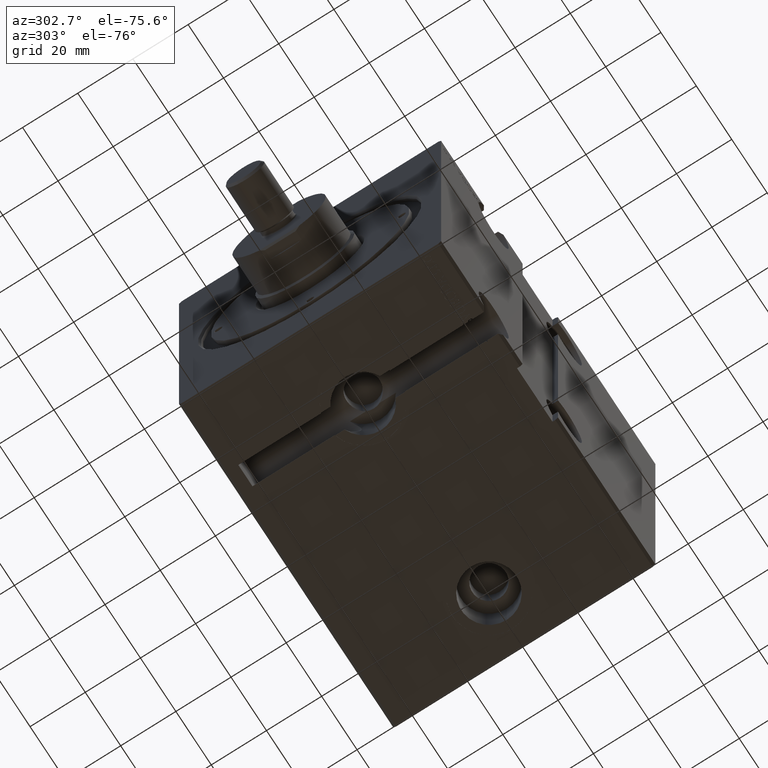
[diagram: clean part render]
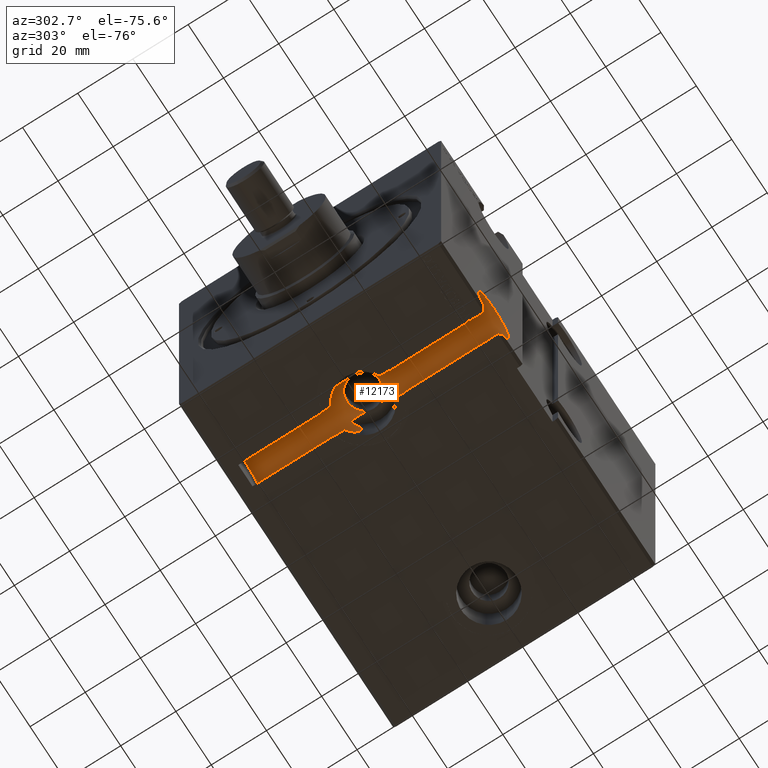
[diagram: same view with one face highlighted and labeled with its STEP entity id]
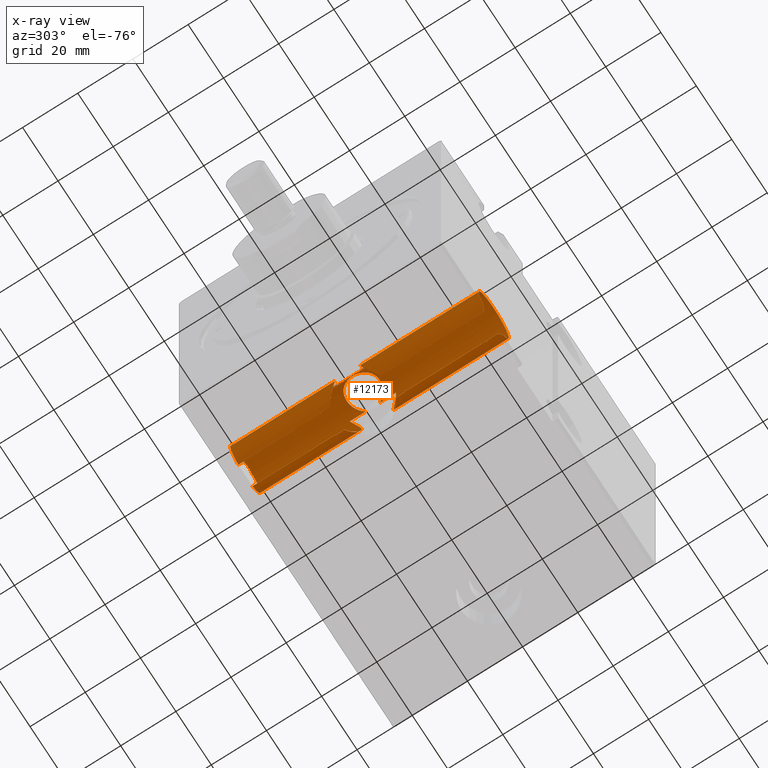
[diagram: x-ray of the same camera — body ghosted, the highlighted face saturated]
A machine part, auxiliary view. The second image highlights one B-rep face of the part: STEP entity #12173.
The next image is the same camera in x-ray: the body ghosted, the highlighted face saturated — about 0% of this face is hidden behind the body in this view.
In plain terms, the highlighted cylindrical surface (edge-blend (fillet) strip) has radius 8.5 mm, axis along (-0, -1, -0).
Its self-contained STEP definition (entity closure, byte-faithful):
#108 = ORIENTED_EDGE ( 'NONE', *, *, #15856, .T. ) ;
#150 = B_SPLINE_CURVE_WITH_KNOTS ( 'NONE', 3,
 ( #28347, #13004, #36809, #19491 ),
 .UNSPECIFIED., .F., .F.,
 ( 4, 4 ),
 ( 6.647921331332125819E-14, 5.401067623535811677E-06 ),
 .UNSPECIFIED. ) ;
#210 = LINE ( 'NONE', #21078, #28147 ) ;
#374 = CARTESIAN_POINT ( 'NONE',  ( 24.25571774332770403, -1.741759066686683566, -48.45139578480374354 ) ) ;
#651 = CARTESIAN_POINT ( 'NONE',  ( 21.20307403096999010, 4.755489555954247827, -54.28642074253728111 ) ) ;
#816 = ORIENTED_EDGE ( 'NONE', *, *, #17418, .F. ) ;
#892 = B_SPLINE_CURVE_WITH_KNOTS ( 'NONE', 3,
 ( #22715, #26041, #16611, #7737 ),
 .UNSPECIFIED., .F., .F.,
 ( 4, 4 ),
 ( 0.000000000000000000, 0.0002146553809396178599 ),
 .UNSPECIFIED. ) ;
#950 = CARTESIAN_POINT ( 'NONE',  ( 31.60794318286851734, 5.790960263388677198, -46.71565587210380244 ) ) ;
#1035 = B_SPLINE_CURVE_WITH_KNOTS ( 'NONE', 3,
 ( #17071, #34581, #2104, #19639, #16016, #21142 ),
 .UNSPECIFIED., .F., .F.,
 ( 4, 2, 4 ),
 ( 9.813077866773594792E-18, 0.0002107407363749036044, 0.0004214814727497973967 ),
 .UNSPECIFIED. ) ;
#1042 = CARTESIAN_POINT ( 'NONE',  ( 21.64687764659769442, 5.501827936005073028, -57.81166235007952992 ) ) ;
#1306 = CARTESIAN_POINT ( 'NONE',  ( 24.19784248308061336, -47.50000000000000711, -61.50000000000001421 ) ) ;
#1531 = CARTESIAN_POINT ( 'NONE',  ( 32.57599727759622255, 5.429240002694839973, -47.00402867175373700 ) ) ;
#1543 = CARTESIAN_POINT ( 'NONE',  ( 38.17313264805599005, -5.761936544386211168, -55.39892836537453036 ) ) ;
#1551 = EDGE_CURVE ( 'NONE', #25912, #12823, #15735, .T. ) ;
#1559 = VERTEX_POINT ( 'NONE', #5076 ) ;
#1696 = ORIENTED_EDGE ( 'NONE', *, *, #4936, .T. ) ;
#1759 = VERTEX_POINT ( 'NONE', #12919 ) ;
#1765 = B_SPLINE_CURVE_WITH_KNOTS ( 'NONE', 3,
 ( #5946, #6332, #9473, #9282, #30325, #33668 ),
 .UNSPECIFIED., .F., .F.,
 ( 4, 2, 4 ),
 ( 1.441404371723892375E-11, 0.0002932933579843761095, 0.0005865867015547084756 ),
 .UNSPECIFIED. ) ;
#1804 = VERTEX_POINT ( 'NONE', #33561 ) ;
#1931 = CARTESIAN_POINT ( 'NONE',  ( 38.13457704317474395, -5.816356424955156257, -54.15242532908114725 ) ) ;
#2073 = CIRCLE ( 'NONE', #20284, 8.500000000000000000 ) ;
#2104 = CARTESIAN_POINT ( 'NONE',  ( 33.90297525096431031, -42.58253699411869064, -62.37424133263155568 ) ) ;
#2138 = VECTOR ( 'NONE', #11752, 1000.000000000000000 ) ;
#2172 = CARTESIAN_POINT ( 'NONE',  ( 25.52982784143263117, -42.42186792964145781, -62.42102786873506659 ) ) ;
#2184 = CARTESIAN_POINT ( 'NONE',  ( 21.54108471117389456, -5.336155085033817969, -57.49083794081117560 ) ) ;
#2211 = CARTESIAN_POINT ( 'NONE',  ( 33.85717279139762326, 12.67614760316800115, -62.39999999999999858 ) ) ;
#2265 = VECTOR ( 'NONE', #27690, 1000.000000000000000 ) ;
#2377 = CARTESIAN_POINT ( 'NONE',  ( 34.02754407051283181, -42.23076923076924061, -62.30109255944974223 ) ) ;
#2442 = EDGE_CURVE ( 'NONE', #27119, #29954, #35110, .T. ) ;
#2577 = CARTESIAN_POINT ( 'NONE',  ( 21.22021821839429023, -4.787238834448681146, -54.10664291624458144 ) ) ;
#2648 = CARTESIAN_POINT ( 'NONE',  ( 25.67506805813219728, -38.98382125218172689, -62.49999999999997158 ) ) ;
#2660 = CARTESIAN_POINT ( 'NONE',  ( 25.67506805813225768, 42.50000000000001421, -62.50000000000000000 ) ) ;
#2738 = CARTESIAN_POINT ( 'NONE',  ( 27.49086874017922355, -5.461321131391861705, -46.77867324891882106 ) ) ;
#2761 = VERTEX_POINT ( 'NONE', #9715 ) ;
#2764 = VERTEX_POINT ( 'NONE', #15839 ) ;
#2768 = VERTEX_POINT ( 'NONE', #15248 ) ;
#2859 = DIRECTION ( 'NONE',  ( -0.000000000000000000, -1.000000000000000000, -5.507058653894626469E-17 ) ) ;
#2884 = CARTESIAN_POINT ( 'NONE',  ( 21.18012596734794428, 4.712792109730139067, -54.65382514941804715 ) ) ;
#2943 = CARTESIAN_POINT ( 'NONE',  ( 24.96515966029890166, -3.280986063497410843, -47.92122257786350303 ) ) ;
#2969 = CARTESIAN_POINT ( 'NONE',  ( 21.20210810239320764, -4.754671696196278496, -55.76797696247106018 ) ) ;
#2992 = CARTESIAN_POINT ( 'NONE',  ( 34.02754407051283181, -42.23076923076924061, -62.30109255944974223 ) ) ;
#3011 = CARTESIAN_POINT ( 'NONE',  ( 34.00457577598747605, -42.22944971349411247, -62.31478488702301632 ) ) ;
#3132 = CARTESIAN_POINT ( 'NONE',  ( 29.00086441872178256, -5.918900836557949852, -46.52496585473003421 ) ) ;
#3163 = ORIENTED_EDGE ( 'NONE', *, *, #7353, .F. ) ;
#3243 = EDGE_CURVE ( 'NONE', #22336, #35865, #3603, .T. ) ;
#3344 = CARTESIAN_POINT ( 'NONE',  ( 25.67506805813225768, 42.50000000000001421, -62.50000000000000000 ) ) ;
#3368 = CARTESIAN_POINT ( 'NONE',  ( 29.67506805813228965, 42.50000000000001421, -55.00000000000002132 ) ) ;
#3372 =( BOUNDED_CURVE ( )  B_SPLINE_CURVE ( 3, ( #30566, #3616, #24289, #36665 ),
 .UNSPECIFIED., .F., .F. ) 
 B_SPLINE_CURVE_WITH_KNOTS ( ( 4, 4 ),
 ( 2.441381098055499521, 2.651635327336060666 ),
 .UNSPECIFIED. ) 
 CURVE ( )  GEOMETRIC_REPRESENTATION_ITEM ( )  RATIONAL_B_SPLINE_CURVE ( ( 1.000000000000000000, 0.9963194881255985624, 0.9963194881255985624, 1.000000000000000000 ) ) 
 REPRESENTATION_ITEM ( '' )  );
#3454 = LINE ( 'NONE', #27266, #25012 ) ;
#3462 = CARTESIAN_POINT ( 'NONE',  ( 25.32075984721416617, 42.49999999997452704, -62.30000000029666296 ) ) ;
#3567 = CYLINDRICAL_SURFACE ( 'NONE', #16404, 8.499999999999992895 ) ;
#3603 =( BOUNDED_CURVE ( )  B_SPLINE_CURVE ( 3, ( #11991, #11406, #23996, #35989 ),
 .UNSPECIFIED., .F., .F. ) 
 B_SPLINE_CURVE_WITH_KNOTS ( ( 4, 4 ),
 ( 2.087874578484643084, 2.108623997399401429 ),
 .UNSPECIFIED. ) 
 CURVE ( )  GEOMETRIC_REPRESENTATION_ITEM ( )  RATIONAL_B_SPLINE_CURVE ( ( 1.000000000000000000, 0.9999641221230350929, 0.9999641221230350929, 1.000000000000000000 ) ) 
 REPRESENTATION_ITEM ( '' )  );
#3604 = CARTESIAN_POINT ( 'NONE',  ( 22.00714750696014121, 6.024397378806160219, -58.72587442619241926 ) ) ;
#3616 = CARTESIAN_POINT ( 'NONE',  ( 34.69590168617018833, -47.11542128547208819, -61.88457871452794024 ) ) ;
#3728 = CARTESIAN_POINT ( 'NONE',  ( 25.50290024390268684, -39.66234960772271734, -62.40568609189743654 ) ) ;
#3804 = CARTESIAN_POINT ( 'NONE',  ( 21.30350708170436747, 4.937176747138196653, -56.48254333354478973 ) ) ;
#3869 = CARTESIAN_POINT ( 'NONE',  ( 37.36671612333887538, 6.765946627072738195, -51.36772692103487259 ) ) ;
#3910 = CARTESIAN_POINT ( 'NONE',  ( 24.15631014226326911, 1.405119751345649037, -48.53470337968934700 ) ) ;
#3997 = CARTESIAN_POINT ( 'NONE',  ( 21.62916430802714629, 5.474748244264664443, -52.23943944690124397 ) ) ;
#4104 = CARTESIAN_POINT ( 'NONE',  ( 25.15448119956154471, 3.554110614755003894, -47.79760885819313643 ) ) ;
#4166 = ORIENTED_EDGE ( 'NONE', *, *, #36378, .F. ) ;
#4276 = VERTEX_POINT ( 'NONE', #8406 ) ;
#4301 = CARTESIAN_POINT ( 'NONE',  ( 35.19669581742154207, 3.016719137988730814, -48.53359339106787473 ) ) ;
#4334 = ORIENTED_EDGE ( 'NONE', *, *, #21335, .F. ) ;
#4487 = DIRECTION ( 'NONE',  ( 0.000000000000000000, 1.000000000000000000, 5.507058653894626469E-17 ) ) ;
#4550 = EDGE_CURVE ( 'NONE', #5489, #25912, #29623, .T. ) ;
#4677 = CARTESIAN_POINT ( 'NONE',  ( 24.24936437997052252, 1.745769598737268113, -48.45518422191489805 ) ) ;
#4688 = CARTESIAN_POINT ( 'NONE',  ( 38.14911678174785692, -5.796392554405197295, -55.75335338804394070 ) ) ;
#4763 = CARTESIAN_POINT ( 'NONE',  ( 33.67506805813231807, 42.50000000000001421, -62.50000000000000000 ) ) ;
#4858 = ORIENTED_EDGE ( 'NONE', *, *, #14614, .F. ) ;
#4936 = EDGE_CURVE ( 'NONE', #4276, #29954, #17953, .T. ) ;
#4947 = VERTEX_POINT ( 'NONE', #2992 ) ;
#5076 = CARTESIAN_POINT ( 'NONE',  ( 23.86043135408966975, -7.893395773819703365, -48.79999999999999716 ) ) ;
#5105 = ORIENTED_EDGE ( 'NONE', *, *, #6844, .F. ) ;
#5144 = CARTESIAN_POINT ( 'NONE',  ( 21.30371461735819594, -4.937542135847456493, -56.48369991847744842 ) ) ;
#5208 = EDGE_CURVE ( 'NONE', #1804, #35172, #15350, .T. ) ;
#5221 = CARTESIAN_POINT ( 'NONE',  ( 34.15221080547841126, 9.102824129345419735, -62.23325947632697108 ) ) ;
#5271 = CARTESIAN_POINT ( 'NONE',  ( 38.07023891535080651, -5.905643638335170031, -53.62239096936095706 ) ) ;
#5338 = CARTESIAN_POINT ( 'NONE',  ( 21.41119333488444454, -5.122435925224801068, -56.99683856194252485 ) ) ;
#5429 = CARTESIAN_POINT ( 'NONE',  ( 25.49296332486695604, 42.50000000000001421, -62.39999999999999858 ) ) ;
#5489 = VERTEX_POINT ( 'NONE', #14472 ) ;
#5506 = CARTESIAN_POINT ( 'NONE',  ( 33.45643751018817369, -4.915179867460278906, -47.38188405326738462 ) ) ;
#5533 = CARTESIAN_POINT ( 'NONE',  ( 21.37224228594109832, -5.056332527347815464, -56.82866292002869102 ) ) ;
#5586 = VECTOR ( 'NONE', #13001, 1000.000000000000000 ) ;
#5611 = CARTESIAN_POINT ( 'NONE',  ( 34.43182182148768078, 8.969373408137535364, -62.05208498345366763 ) ) ;
#5832 = CARTESIAN_POINT ( 'NONE',  ( 22.29564173073976363, 6.379638574118798644, -50.76972663994769874 ) ) ;
#5887 = CARTESIAN_POINT ( 'NONE',  ( 29.53303047296405026, -5.984449882187469427, -46.49934089184005614 ) ) ;
#5946 = CARTESIAN_POINT ( 'NONE',  ( 25.32075984721416617, -39.39656593595944400, -62.30000000029667007 ) ) ;
#6033 = LINE ( 'NONE', #3462, #11639 ) ;
#6085 = CARTESIAN_POINT ( 'NONE',  ( 25.81078057912967694, -4.308708959246603243, -47.42392288408444756 ) ) ;
#6265 = ORIENTED_EDGE ( 'NONE', *, *, #2442, .F. ) ;
#6278 = EDGE_CURVE ( 'NONE', #28104, #2761, #15301, .T. ) ;
#6280 = CARTESIAN_POINT ( 'NONE',  ( 33.96789151942590479, -4.512404046779342259, -47.65792180367366626 ) ) ;
#6332 = CARTESIAN_POINT ( 'NONE',  ( 25.36676907904872635, -39.31446441653523749, -62.32744361344435902 ) ) ;
#6483 = CARTESIAN_POINT ( 'NONE',  ( 25.59948681279090010, -39.50065715595492577, -62.45929337732636810 ) ) ;
#6554 = CARTESIAN_POINT ( 'NONE',  ( 23.86043135408966975, 7.893395773819710470, -48.79999999999999716 ) ) ;
#6844 = EDGE_CURVE ( 'NONE', #31746, #35911, #892, .T. ) ;
#6930 = ORIENTED_EDGE ( 'NONE', *, *, #6278, .T. ) ;
#7012 = CARTESIAN_POINT ( 'NONE',  ( 25.67506805813225768, -46.50000000000000711, -62.50000000000000000 ) ) ;
#7048 = CARTESIAN_POINT ( 'NONE',  ( 28.46159332958545818, 5.810146321781950007, -46.57988628743392212 ) ) ;
#7185 = ORIENTED_EDGE ( 'NONE', *, *, #21471, .T. ) ;
#7249 = CARTESIAN_POINT ( 'NONE',  ( 33.16483357971504375, 5.108447650094210424, -47.24290747619651398 ) ) ;
#7331 = VERTEX_POINT ( 'NONE', #23242 ) ;
#7353 = EDGE_CURVE ( 'NONE', #12823, #21083, #16593, .T. ) ;
#7404 =( BOUNDED_CURVE ( )  B_SPLINE_CURVE ( 3, ( #7012, #21796, #31012, #1306 ),
 .UNSPECIFIED., .F., .F. ) 
 B_SPLINE_CURVE_WITH_KNOTS ( ( 4, 4 ),
 ( 3.631549979843525566, 3.841804209124086711 ),
 .UNSPECIFIED. ) 
 CURVE ( )  GEOMETRIC_REPRESENTATION_ITEM ( )  RATIONAL_B_SPLINE_CURVE ( ( 1.000000000000000000, 0.9963194881255985624, 0.9963194881255985624, 1.000000000000000000 ) ) 
 REPRESENTATION_ITEM ( '' )  );
#7441 = CARTESIAN_POINT ( 'NONE',  ( 34.63793744199068669, 3.820303445283969257, -48.09421690926448179 ) ) ;
#7453 = CARTESIAN_POINT ( 'NONE',  ( 33.85717279139762326, -9.226170281178522004, -62.39999999999999858 ) ) ;
#7517 = LINE ( 'NONE', #4763, #38661 ) ;
#7604 = VECTOR ( 'NONE', #4487, 1000.000000000000000 ) ;
#7629 = CARTESIAN_POINT ( 'NONE',  ( 24.06335949098330929, 0.8871683233531000301, -48.61561167471557354 ) ) ;
#7737 = CARTESIAN_POINT ( 'NONE',  ( 33.85717279139762326, -12.67614760316799405, -62.39999999999999858 ) ) ;
#7832 = CARTESIAN_POINT ( 'NONE',  ( 34.44801593622209879, -8.979157270064916929, -62.06608541721787731 ) ) ;
#8027 = CARTESIAN_POINT ( 'NONE',  ( 37.38701893589603742, -6.750040460969278122, -51.36519459098093421 ) ) ;
#8041 = EDGE_CURVE ( 'NONE', #27119, #35911, #38773, .T. ) ;
#8044 = EDGE_CURVE ( 'NONE', #4947, #26539, #30654, .T. ) ;
#8047 = B_SPLINE_CURVE_WITH_KNOTS ( 'NONE', 3,
 ( #25157, #25344, #18875, #37163, #7629, #3910, #4677, #30848, #12764, #36968, #4104, #34003, #24762, #37352, #16121, #22214, #9810, #22410, #7048, #25542, #37546, #10200, #19065, #34586, #950, #28114, #1531, #7249, #16693, #36770, #33811, #7441, #19258, #4301, #31045, #16311 ),
 .UNSPECIFIED., .F., .F.,
 ( 4, 2, 2, 2, 2, 2, 2, 2, 2, 2, 2, 2, 2, 2, 2, 2, 2, 4 ),
 ( 0.01696928683247717062, 0.01749884251802953997, 0.01802839820358190931, 0.01908750957468665146, 0.02014662094579139015, 0.02120573231689613231, 0.02226484368800087446, 0.02332395505910561315, 0.02438306643021035530, 0.02544217780131509399, 0.02650128917241983614, 0.02756040054352457830, 0.02861951191462931698, 0.02967862328573405567, 0.03073773465683880129, 0.03179684602794353998, 0.03285595739904827867, 0.03391506877015301735 ),
 .UNSPECIFIED. ) ;
#8136 = CARTESIAN_POINT ( 'NONE',  ( 25.32075984721416617, -42.12382751200284758, -62.30000000029667007 ) ) ;
#8186 = VERTEX_POINT ( 'NONE', #33639 ) ;
#8251 = CARTESIAN_POINT ( 'NONE',  ( 25.55316634081186677, -12.48167733284254055, -62.43402369161351118 ) ) ;
#8279 = VECTOR ( 'NONE', #27102, 1000.000000000000000 ) ;
#8373 = LINE ( 'NONE', #5429, #11516 ) ;
#8406 = CARTESIAN_POINT ( 'NONE',  ( 35.48970476217490955, -2.421392496922806892, -48.79999999999999716 ) ) ;
#8450 = CARTESIAN_POINT ( 'NONE',  ( 32.28217635482313597, -5.559639345790319709, -46.90268309509918510 ) ) ;
#8455 = B_SPLINE_CURVE_WITH_KNOTS ( 'NONE', 3,
 ( #18835, #19414, #31387, #28456, #19605, #3869, #12922, #24921, #10930, #14079, #17609, #29602, #19796, #32160, #35318, #19991, #17421, #11321, #26467, #34731, #38270, #34932, #38459, #11124, #28849, #14277, #35121, #5611, #5221, #23137 ),
 .UNSPECIFIED., .F., .F.,
 ( 4, 2, 2, 2, 2, 2, 2, 2, 2, 2, 2, 2, 2, 2, 4 ),
 ( 0.000000000000000000, 0.002134187341948999561, 0.003201281012923508015, 0.004268374683898016470, 0.005335468354872524924, 0.006402562025847032511, 0.007469655696821541832, 0.008536749367796050286, 0.009603843038770557006, 0.01067093670974506373, 0.01173803038071957218, 0.01280512405169407890, 0.01493931139364310448, 0.01600640506461762508, 0.01707349873559214568 ),
 .UNSPECIFIED. ) ;
#8674 = CARTESIAN_POINT ( 'NONE',  ( 34.02937626949007210, -42.23066561297881094, -62.30000000003441585 ) ) ;
#8784 = CARTESIAN_POINT ( 'NONE',  ( 22.00015906729423421, 6.004953765759436735, -51.33299609973818178 ) ) ;
#8870 = CARTESIAN_POINT ( 'NONE',  ( 23.02644424591226269, -7.172760380562611005, -60.30531609129909754 ) ) ;
#8884 = CARTESIAN_POINT ( 'NONE',  ( 35.48970476217490955, -8.358417411457388368, -48.79999999999999716 ) ) ;
#8911 = CARTESIAN_POINT ( 'NONE',  ( 33.69171961294718187, -41.91703111884937272, -62.49112297959790396 ) ) ;
#8935 = B_SPLINE_CURVE_WITH_KNOTS ( 'NONE', 3,
 ( #27967, #36616, #9657, #12812, #24815, #25017 ),
 .UNSPECIFIED., .F., .F.,
 ( 4, 2, 4 ),
 ( 0.000000000000000000, 0.0003287994048208278002, 0.0006575988096416556005 ),
 .UNSPECIFIED. ) ;
#9032 = CARTESIAN_POINT ( 'NONE',  ( 34.64603550706510049, -3.810478643230566398, -48.10004837378015452 ) ) ;
#9049 = CARTESIAN_POINT ( 'NONE',  ( 25.49296332486695604, 12.45990049755637941, -62.39999999999999858 ) ) ;
#9225 = CARTESIAN_POINT ( 'NONE',  ( 26.32187008164235564, -4.752461736339538945, -47.18426423699346373 ) ) ;
#9237 = EDGE_CURVE ( 'NONE', #37953, #25282, #27389, .T. ) ;
#9282 = CARTESIAN_POINT ( 'NONE',  ( 25.53283353453387505, -39.09172071597189557, -62.42268846724497422 ) ) ;
#9473 = CARTESIAN_POINT ( 'NONE',  ( 25.41735185887513992, -39.23612012584291620, -62.35705536861356535 ) ) ;
#9505 = CARTESIAN_POINT ( 'NONE',  ( 22.83775622330444932, 6.983610936111390721, -60.05967737163730646 ) ) ;
#9628 = VECTOR ( 'NONE', #2859, 1000.000000000000000 ) ;
#9633 = B_SPLINE_CURVE_WITH_KNOTS ( 'NONE', 3,
 ( #18105, #15938, #6483, #27735, #3728, #18493 ),
 .UNSPECIFIED., .F., .F.,
 ( 4, 2, 4 ),
 ( 0.000000000000000000, 0.0001954558526534812182, 0.0003909117053069624363 ),
 .UNSPECIFIED. ) ;
#9657 = CARTESIAN_POINT ( 'NONE',  ( 25.41709562979395898, -40.97167930865911956, -62.35694033096257272 ) ) ;
#9715 = CARTESIAN_POINT ( 'NONE',  ( 35.48970476217490955, 2.421392496922812665, -48.79999999999999716 ) ) ;
#9750 = DIRECTION ( 'NONE',  ( 0.000000000000000000, 1.000000000000000000, 5.507058653894626469E-17 ) ) ;
#9810 = CARTESIAN_POINT ( 'NONE',  ( 27.47426536889678417, 5.453478213967677846, -46.78322494119161945 ) ) ;
#9896 = CARTESIAN_POINT ( 'NONE',  ( 23.38815665254393750, 7.526055400557565278, -49.24292029258044323 ) ) ;
#10053 = EDGE_CURVE ( 'NONE', #38191, #14538, #17811, .T. ) ;
#10128 = EDGE_CURVE ( 'NONE', #19327, #21083, #8373, .T. ) ;
#10200 = CARTESIAN_POINT ( 'NONE',  ( 30.21348927352179814, 6.006705188126741923, -46.50964217032431947 ) ) ;
#10218 = EDGE_CURVE ( 'NONE', #1804, #16704, #21260, .T. ) ;
#10462 = ORIENTED_EDGE ( 'NONE', *, *, #3243, .T. ) ;
#10757 = EDGE_CURVE ( 'NONE', #2764, #16110, #2073, .T. ) ;
#10930 = CARTESIAN_POINT ( 'NONE',  ( 37.83699209280214149, 6.212901040467579072, -52.60202956349495906 ) ) ;
#10987 = CARTESIAN_POINT ( 'NONE',  ( 35.94827870859869989, -8.042831244900627397, -49.25548943155977355 ) ) ;
#11018 = CARTESIAN_POINT ( 'NONE',  ( 25.67506805813225768, -12.52427497694824510, -62.50000000000000000 ) ) ;
#11124 = CARTESIAN_POINT ( 'NONE',  ( 36.34071448858872344, 7.747708928678170182, -60.31240554644534058 ) ) ;
#11294 = CARTESIAN_POINT ( 'NONE',  ( 33.75200748827484176, -42.06100270539115371, -62.45854172041459407 ) ) ;
#11321 = CARTESIAN_POINT ( 'NONE',  ( 37.82032357975332815, 6.233932570631443681, -57.45382347008251855 ) ) ;
#11406 = CARTESIAN_POINT ( 'NONE',  ( 25.42205189630561080, -39.66565110935619032, -62.35970854842310018 ) ) ;
#11439 = CARTESIAN_POINT ( 'NONE',  ( 23.66368814216559713, -7.742097382183898979, -61.01805742594834925 ) ) ;
#11516 = VECTOR ( 'NONE', #38863, 1000.000000000000000 ) ;
#11603 = CARTESIAN_POINT ( 'NONE',  ( 30.24051069967039140, -6.005605789273920969, -46.51145159293872666 ) ) ;
#11630 = CARTESIAN_POINT ( 'NONE',  ( 21.64495807256795601, -5.498925931965023217, -57.80627685059442200 ) ) ;
#11639 = VECTOR ( 'NONE', #27477, 1000.000000000000000 ) ;
#11671 = ORIENTED_EDGE ( 'NONE', *, *, #37148, .T. ) ;
#11745 = CARTESIAN_POINT ( 'NONE',  ( 21.37204089779406146, 5.055989026996583036, -56.82776034878062887 ) ) ;
#11752 = DIRECTION ( 'NONE',  ( -0.000000000000000000, -1.000000000000000000, -5.507058653894626469E-17 ) ) ;
#11827 = DIRECTION ( 'NONE',  ( -0.000000000000000000, -1.000000000000000000, -5.507058653894626469E-17 ) ) ;
#11830 = CARTESIAN_POINT ( 'NONE',  ( 23.86043135408966975, -7.893395773819703365, -48.79999999999999716 ) ) ;
#11862 = EDGE_CURVE ( 'NONE', #34231, #21807, #1035, .T. ) ;
#11873 = CARTESIAN_POINT ( 'NONE',  ( 34.02754407051283181, -42.23076923076924061, -62.30109255944974223 ) ) ;
#11991 = CARTESIAN_POINT ( 'NONE',  ( 25.47315705128205465, -39.71794871794872250, -62.38877147369649379 ) ) ;
#12020 = CARTESIAN_POINT ( 'NONE',  ( 21.88542638807305352, -5.847957516176353288, -58.41750476144787996 ) ) ;
#12034 = DIRECTION ( 'NONE',  ( 0.000000000000000000, 0.000000000000000000, -1.000000000000000000 ) ) ;
#12036 = CARTESIAN_POINT ( 'NONE',  ( 25.67506805813219017, -39.40252063465266019, -62.49999999999997158 ) ) ;
#12129 = CARTESIAN_POINT ( 'NONE',  ( 25.67506805813225768, 12.52427497694825220, -62.50000000000000000 ) ) ;
#12173 = ADVANCED_FACE ( 'NONE', ( #18137 ), #3567, .F. ) ;
#12617 = EDGE_CURVE ( 'NONE', #36207, #2761, #8047, .T. ) ;
#12619 = EDGE_CURVE ( 'NONE', #2768, #21807, #28307, .T. ) ;
#12646 = B_SPLINE_CURVE_WITH_KNOTS ( 'NONE', 3,
 ( #20926, #14248, #8911, #35683, #11294, #21126, #26439, #23693, #14626, #23492, #3011, #11873 ),
 .UNSPECIFIED., .F., .F.,
 ( 4, 2, 2, 2, 2, 4 ),
 ( 0.000000000000000000, 0.0001577364811652047212, 0.0003154729623304094424, 0.0004732094434956140823, 0.0005520776840782084605, 0.0006309459246608027302 ),
 .UNSPECIFIED. ) ;
#12657 = CARTESIAN_POINT ( 'NONE',  ( 21.86543427763046665, 5.820017098646379949, -51.62851932561885349 ) ) ;
#12742 = CARTESIAN_POINT ( 'NONE',  ( 33.85717279139762326, 42.50000000000001421, -62.39999999999999858 ) ) ;
#12764 = CARTESIAN_POINT ( 'NONE',  ( 24.62851872706638900, 2.694369640031193835, -48.15720405811408966 ) ) ;
#12812 = CARTESIAN_POINT ( 'NONE',  ( 25.53884097823010535, -40.80243494271609705, -62.42607068221928301 ) ) ;
#12823 = VERTEX_POINT ( 'NONE', #12129 ) ;
#12831 = CARTESIAN_POINT ( 'NONE',  ( 25.47315705128205465, -39.71794871794872250, -62.38877147369649379 ) ) ;
#12853 = CARTESIAN_POINT ( 'NONE',  ( 24.37336459077721784, 8.288094413558141582, -61.67471184545963325 ) ) ;
#12919 = CARTESIAN_POINT ( 'NONE',  ( 25.49296332486695604, -12.45990049755637230, -62.39999999999999858 ) ) ;
#12922 = CARTESIAN_POINT ( 'NONE',  ( 37.50127259555571158, 6.615417334617429646, -51.66693606089705781 ) ) ;
#12942 = VECTOR ( 'NONE', #13164, 1000.000000000000000 ) ;
#13001 = DIRECTION ( 'NONE',  ( 0.000000000000000000, 1.000000000000000000, 5.507058653894626469E-17 ) ) ;
#13004 = CARTESIAN_POINT ( 'NONE',  ( 34.02783100891322476, -42.58961979455489910, -62.30092171795477185 ) ) ;
#13164 = DIRECTION ( 'NONE',  ( -0.000000000000000000, -1.000000000000000000, -5.507058653894626469E-17 ) ) ;
#13195 = CARTESIAN_POINT ( 'NONE',  ( 25.49296332486695604, 42.50000000000001421, -62.39999999999999858 ) ) ;
#13240 = ORIENTED_EDGE ( 'NONE', *, *, #9237, .F. ) ;
#13332 = ORIENTED_EDGE ( 'NONE', *, *, #35873, .T. ) ;
#13481 = VECTOR ( 'NONE', #21808, 1000.000000000000000 ) ;
#13559 = EDGE_CURVE ( 'NONE', #25282, #5489, #27487, .T. ) ;
#13729 = VERTEX_POINT ( 'NONE', #22566 ) ;
#13755 = EDGE_CURVE ( 'NONE', #28104, #35952, #8455, .T. ) ;
#13946 = CARTESIAN_POINT ( 'NONE',  ( 37.35362544861208534, -6.786822772803319026, -58.70517717373427047 ) ) ;
#14079 = CARTESIAN_POINT ( 'NONE',  ( 38.00344251422209396, 5.996956921875377766, -53.26637804547108601 ) ) ;
#14128 = LINE ( 'NONE', #29838, #2138 ) ;
#14137 = CARTESIAN_POINT ( 'NONE',  ( 37.84089540447154576, -6.207959505391165145, -52.61530535919513341 ) ) ;
#14202 = CARTESIAN_POINT ( 'NONE',  ( 21.63006675750970587, -5.476193605701791256, -52.23653544399322612 ) ) ;
#14248 = CARTESIAN_POINT ( 'NONE',  ( 33.68187906749869143, -41.86550122805100926, -62.49636746167128365 ) ) ;
#14277 = CARTESIAN_POINT ( 'NONE',  ( 35.21676373771394708, 8.536138754705298481, -61.45325509343351200 ) ) ;
#14312 = EDGE_CURVE ( 'NONE', #26539, #13729, #14128, .T. ) ;
#14328 = CARTESIAN_POINT ( 'NONE',  ( 38.05629792997989114, -5.924722325200650452, -56.46014688738434018 ) ) ;
#14396 = CARTESIAN_POINT ( 'NONE',  ( 21.17642046921672261, -4.705789191265242088, -55.40279037453896649 ) ) ;
#14472 = CARTESIAN_POINT ( 'NONE',  ( 33.67506805813231807, 42.50000000000001421, -62.50000000000000000 ) ) ;
#14518 = CARTESIAN_POINT ( 'NONE',  ( 35.48970476217490955, 42.50000000000001421, -48.79999999999999716 ) ) ;
#14538 = VERTEX_POINT ( 'NONE', #2648 ) ;
#14546 = CARTESIAN_POINT ( 'NONE',  ( 25.49296332486695604, -12.45990049755637230, -62.39999999999999858 ) ) ;
#14581 = CARTESIAN_POINT ( 'NONE',  ( 21.52730049536813439, -5.314184186528168929, -52.55427237248112249 ) ) ;
#14614 = EDGE_CURVE ( 'NONE', #2764, #2768, #3372, .T. ) ;
#14626 = CARTESIAN_POINT ( 'NONE',  ( 33.93673913257538288, -42.21656638182658128, -62.35451107557754824 ) ) ;
#14780 = CARTESIAN_POINT ( 'NONE',  ( 22.02085166044163245, -6.032449840883136183, -58.70992000260415722 ) ) ;
#14973 = CARTESIAN_POINT ( 'NONE',  ( 34.02876558429748144, -42.23070020151625670, -62.30036426189042231 ) ) ;
#15062 = CARTESIAN_POINT ( 'NONE',  ( 33.67506805813231807, 12.73013647876940801, -62.50000000000000000 ) ) ;
#15121 = EDGE_LOOP ( 'NONE', ( #13240, #25034, #17063, #6930, #35792, #35734, #1696, #6265, #36548, #5105, #816, #27517, #24605, #38297, #13332, #23597, #20338, #4858, #37610, #35239, #25230, #28536, #11671, #24069, #25625, #15804, #10462, #27896, #108, #29052, #24019, #34459, #4334, #7185, #4166, #37231, #3163, #30879, #18662, #37805 ) ) ;
#15194 = DIRECTION ( 'NONE',  ( -0.000000000000000000, -1.000000000000000000, -5.507058653894626469E-17 ) ) ;
#15248 = CARTESIAN_POINT ( 'NONE',  ( 33.67506805813231807, -46.50000000000000711, -62.50000000000000000 ) ) ;
#15301 = LINE ( 'NONE', #14518, #8279 ) ;
#15336 = CARTESIAN_POINT ( 'NONE',  ( 30.59634563346276082, -5.980803630926919467, -46.54266203605995855 ) ) ;
#15350 = LINE ( 'NONE', #32848, #36535 ) ;
#15383 = DIRECTION ( 'NONE',  ( -0.000000000000000000, -1.000000000000000000, -5.507058653894626469E-17 ) ) ;
#15625 = CARTESIAN_POINT ( 'NONE',  ( 21.52702878439951562, 5.313731059715763649, -52.55536925368784296 ) ) ;
#15735 = LINE ( 'NONE', #27920, #12942 ) ;
#15804 = ORIENTED_EDGE ( 'NONE', *, *, #24932, .T. ) ;
#15839 = CARTESIAN_POINT ( 'NONE',  ( 35.15229363318396594, -47.50000000000000711, -61.50000000000001421 ) ) ;
#15856 = EDGE_CURVE ( 'NONE', #18810, #14538, #1765, .T. ) ;
#15938 = CARTESIAN_POINT ( 'NONE',  ( 25.63420541672106268, -39.44882016766087673, -62.47820659124737119 ) ) ;
#16016 = CARTESIAN_POINT ( 'NONE',  ( 33.72671619391552866, -42.51454789815616664, -62.47245432758229811 ) ) ;
#16110 = VERTEX_POINT ( 'NONE', #32463 ) ;
#16121 = CARTESIAN_POINT ( 'NONE',  ( 26.59075389339226803, 4.948919239907806578, -47.07340624716918853 ) ) ;
#16311 = CARTESIAN_POINT ( 'NONE',  ( 35.48970476217490955, 2.421392496922812665, -48.79999999999999716 ) ) ;
#16404 = AXIS2_PLACEMENT_3D ( 'NONE', #3368, #15383, #12034 ) ;
#16593 = B_SPLINE_CURVE_WITH_KNOTS ( 'NONE', 3,
 ( #35819, #20874, #32854, #9049 ),
 .UNSPECIFIED., .F., .F.,
 ( 4, 4 ),
 ( 0.000000000000000000, 0.0002174999022404419571 ),
 .UNSPECIFIED. ) ;
#16611 = CARTESIAN_POINT ( 'NONE',  ( 33.79695765200214908, -12.69447022014733761, -62.43403054317298029 ) ) ;
#16693 = CARTESIAN_POINT ( 'NONE',  ( 33.44489484649194821, 4.923451085011601336, -47.37606609683073344 ) ) ;
#16704 = VERTEX_POINT ( 'NONE', #8136 ) ;
#16946 = CARTESIAN_POINT ( 'NONE',  ( 25.32075984721416617, -42.12382751200284758, -62.30000000029667007 ) ) ;
#17063 = ORIENTED_EDGE ( 'NONE', *, *, #13755, .F. ) ;
#17071 = CARTESIAN_POINT ( 'NONE',  ( 34.02473958333334281, -42.58974358974359831, -62.30276369759116761 ) ) ;
#17096 = CARTESIAN_POINT ( 'NONE',  ( 25.32075984671681823, -41.16130349023451629, -62.30000000000001847 ) ) ;
#17343 = CARTESIAN_POINT ( 'NONE',  ( 23.44026717090099154, -7.553070669812342430, -60.78600339799383079 ) ) ;
#17418 = EDGE_CURVE ( 'NONE', #7331, #31746, #7517, .T. ) ;
#17421 = CARTESIAN_POINT ( 'NONE',  ( 37.99081063983469875, 6.013844153744781096, -56.79300375060606854 ) ) ;
#17509 = CARTESIAN_POINT ( 'NONE',  ( 27.17753126891856752, -5.305647922487181312, -46.86934935333910346 ) ) ;
#17609 = CARTESIAN_POINT ( 'NONE',  ( 38.06855403238336066, 5.907947457798509383, -53.61305289266211105 ) ) ;
#17696 = VECTOR ( 'NONE', #15194, 1000.000000000000000 ) ;
#17702 = CARTESIAN_POINT ( 'NONE',  ( 34.84333950262093538, -3.556201883134800568, -48.24790306675440377 ) ) ;
#17731 = CARTESIAN_POINT ( 'NONE',  ( 22.31851881298274520, -6.407191746853530212, -59.26986162446616646 ) ) ;
#17811 = LINE ( 'NONE', #2660, #9628 ) ;
#17835 = CARTESIAN_POINT ( 'NONE',  ( 24.89789289541932860, 8.626290039521817832, -62.06369637032175035 ) ) ;
#17896 = CARTESIAN_POINT ( 'NONE',  ( 29.17899241989719172, -5.946229686533101244, -46.51263946153501649 ) ) ;
#17953 = LINE ( 'NONE', #29944, #17696 ) ;
#18105 = CARTESIAN_POINT ( 'NONE',  ( 25.67506805813219017, -39.40252063465266019, -62.49999999999997158 ) ) ;
#18137 = FACE_OUTER_BOUND ( 'NONE', #15121, .T. ) ;
#18448 = CARTESIAN_POINT ( 'NONE',  ( 25.67506805813225768, 42.50000000000001421, -62.50000000000000000 ) ) ;
#18493 = CARTESIAN_POINT ( 'NONE',  ( 25.47315705128205465, -39.71794871794872250, -62.38877147369649379 ) ) ;
#18662 = ORIENTED_EDGE ( 'NONE', *, *, #4550, .F. ) ;
#18709 = LINE ( 'NONE', #13195, #5586 ) ;
#18810 = VERTEX_POINT ( 'NONE', #20751 ) ;
#18820 = CARTESIAN_POINT ( 'NONE',  ( 25.67506805813225768, -12.52427497694824510, -62.50000000000000000 ) ) ;
#18835 = CARTESIAN_POINT ( 'NONE',  ( 35.48970476217490955, 8.358417411457395474, -48.79999999999999716 ) ) ;
#18875 = CARTESIAN_POINT ( 'NONE',  ( 24.00812207633233797, 0.3590166432479610648, -48.66468838287038068 ) ) ;
#19065 = CARTESIAN_POINT ( 'NONE',  ( 30.57442531827550170, 5.982767004582433934, -46.54042798623027721 ) ) ;
#19067 = CARTESIAN_POINT ( 'NONE',  ( 24.16412924717280575, -1.404676420746628462, -48.52828242089326238 ) ) ;
#19231 = CARTESIAN_POINT ( 'NONE',  ( 29.67506805813228965, -47.50000000000000711, -55.00000000000002842 ) ) ;
#19258 = CARTESIAN_POINT ( 'NONE',  ( 34.83931391648939524, 3.561921194241411737, -48.24475372331723833 ) ) ;
#19327 = VERTEX_POINT ( 'NONE', #21674 ) ;
#19414 = CARTESIAN_POINT ( 'NONE',  ( 35.96401006114869858, 8.046899580948952746, -49.24482467747337466 ) ) ;
#19428 = EDGE_CURVE ( 'NONE', #37953, #35952, #37528, .T. ) ;
#19491 = CARTESIAN_POINT ( 'NONE',  ( 34.02473958333334281, -42.58974358974359831, -62.30276369759116761 ) ) ;
#19531 = CARTESIAN_POINT ( 'NONE',  ( 35.48970476217490955, 8.358417411457395474, -48.79999999999999716 ) ) ;
#19605 = CARTESIAN_POINT ( 'NONE',  ( 37.06807219755740590, 7.077350889448265292, -50.79305960660075669 ) ) ;
#19639 = CARTESIAN_POINT ( 'NONE',  ( 33.78431918931430999, -42.54458790303858962, -62.44101401718688038 ) ) ;
#19706 = CARTESIAN_POINT ( 'NONE',  ( 25.59717967280624507, -42.47988968818077637, -62.45845952782614319 ) ) ;
#19796 = CARTESIAN_POINT ( 'NONE',  ( 38.17635479616131988, 5.757362912317874226, -54.66932310801868766 ) ) ;
#19991 = CARTESIAN_POINT ( 'NONE',  ( 38.05836201193977075, 5.921893825067124695, -56.44717080930688269 ) ) ;
#20141 = CARTESIAN_POINT ( 'NONE',  ( 33.67506805813231807, -12.73013647876940091, -62.50000000000000000 ) ) ;
#20232 = CARTESIAN_POINT ( 'NONE',  ( 36.36277225921823941, -7.719085645751133207, -49.74384303365815185 ) ) ;
#20257 = CARTESIAN_POINT ( 'NONE',  ( 33.85717279139762326, 9.226170281178529109, -62.39999999999999858 ) ) ;
#20284 = AXIS2_PLACEMENT_3D ( 'NONE', #19231, #22582, #28470 ) ;
#20338 = ORIENTED_EDGE ( 'NONE', *, *, #12619, .F. ) ;
#20462 = CARTESIAN_POINT ( 'NONE',  ( 29.70996479759772058, -5.995595562958826008, -46.49823094423594227 ) ) ;
#20602 = CARTESIAN_POINT ( 'NONE',  ( 21.17633916039379827, 4.705636638559833607, -55.40101452974588625 ) ) ;
#20658 = CARTESIAN_POINT ( 'NONE',  ( 25.61387505968139777, -12.50314356981243158, -62.46736373415954091 ) ) ;
#20751 = CARTESIAN_POINT ( 'NONE',  ( 25.32075984721416617, -39.39656593595944400, -62.30000000029667007 ) ) ;
#20859 = CARTESIAN_POINT ( 'NONE',  ( 35.19740607421848466, -3.015208031121020316, -48.53427300638585962 ) ) ;
#20874 = CARTESIAN_POINT ( 'NONE',  ( 25.61387505968139777, 12.50314356981243691, -62.46736373415954091 ) ) ;
#20887 = CARTESIAN_POINT ( 'NONE',  ( 24.89881819423942488, -8.626757215384539990, -62.06421930229134887 ) ) ;
#20926 = CARTESIAN_POINT ( 'NONE',  ( 33.67506805813243176, -41.81295861275559389, -62.49999999999995026 ) ) ;
#21047 = CARTESIAN_POINT ( 'NONE',  ( 32.59735649179924621, -5.418994831723264127, -47.01185929933222951 ) ) ;
#21069 = EDGE_CURVE ( 'NONE', #7331, #4947, #12646, .T. ) ;
#21078 = CARTESIAN_POINT ( 'NONE',  ( 23.86043135408966975, 42.50000000000001421, -48.79999999999999716 ) ) ;
#21083 = VERTEX_POINT ( 'NONE', #32525 ) ;
#21126 = CARTESIAN_POINT ( 'NONE',  ( 33.81464193193350098, -42.13952589303575991, -62.42396173586305963 ) ) ;
#21142 = CARTESIAN_POINT ( 'NONE',  ( 33.67506805813234649, -42.47337038677940058, -62.50000000000000000 ) ) ;
#21260 = B_SPLINE_CURVE_WITH_KNOTS ( 'NONE', 3,
 ( #23054, #19706, #2172, #25797, #35225, #16946 ),
 .UNSPECIFIED., .F., .F.,
 ( 4, 2, 4 ),
 ( 0.000000000000000000, 0.0002874211146872816965, 0.0005748422293745633930 ),
 .UNSPECIFIED. ) ;
#21335 = EDGE_CURVE ( 'NONE', #1559, #35531, #32354, .T. ) ;
#21348 = DIRECTION ( 'NONE',  ( 0.000000000000000000, 0.000000000000000000, -1.000000000000000000 ) ) ;
#21471 = EDGE_CURVE ( 'NONE', #1559, #29571, #210, .T. ) ;
#21519 = CARTESIAN_POINT ( 'NONE',  ( 21.41106465446310381, 5.122225570636929071, -56.99636291919474473 ) ) ;
#21674 = CARTESIAN_POINT ( 'NONE',  ( 25.49296332486695604, 8.926736268592557977, -62.39999999999999858 ) ) ;
#21687 = B_SPLINE_CURVE_WITH_KNOTS ( 'NONE', 3,
 ( #38890, #17835, #12853, #24657, #38694, #33898, #9505, #30938, #3604, #1042, #21719, #21519, #11745, #3804, #32780, #25055, #20602, #23757, #2884, #651, #35746, #36655, #33500, #15625, #3997, #12657, #8784, #5832, #24855, #29828, #9896, #6554 ),
 .UNSPECIFIED., .F., .F.,
 ( 4, 2, 2, 2, 2, 2, 2, 2, 2, 2, 2, 2, 2, 2, 2, 4 ),
 ( 0.000000000000000000, 0.002202995593110829674, 0.003304493389666244511, 0.004405991186221659348, 0.006608986779332469939, 0.007710484575887886077, 0.008261233474165585039, 0.008811982372443285735, 0.009913480168998685393, 0.01046422906727637395, 0.01101497796555406423, 0.01211647576210944308, 0.01321797355866482018, 0.01431947135522020076, 0.01542096915177558134, 0.01762396474488635983 ),
 .UNSPECIFIED. ) ;
#21719 = CARTESIAN_POINT ( 'NONE',  ( 21.54147480325078234, 5.336794183885864129, -57.49229400515120858 ) ) ;
#21735 = DIRECTION ( 'NONE',  ( 0.000000000000000000, -1.000000000000000000, -5.507058653894625853E-17 ) ) ;
#21796 = CARTESIAN_POINT ( 'NONE',  ( 25.14846196542405465, -46.78085658277773007, -62.21914341722230546 ) ) ;
#21807 = VERTEX_POINT ( 'NONE', #27659 ) ;
#21808 = DIRECTION ( 'NONE',  ( -0.000000000000000000, -1.000000000000000000, -5.507058653894626469E-17 ) ) ;
#22024 = CARTESIAN_POINT ( 'NONE',  ( 23.99999999999999289, -0.3583207955731739225, -48.67199853543267096 ) ) ;
#22214 = CARTESIAN_POINT ( 'NONE',  ( 27.16948259862396853, 5.301219850096501318, -46.87190527280021968 ) ) ;
#22336 = VERTEX_POINT ( 'NONE', #12831 ) ;
#22410 = CARTESIAN_POINT ( 'NONE',  ( 28.11801194402614712, 5.707703655074071847, -46.63731495860771048 ) ) ;
#22512 = CARTESIAN_POINT ( 'NONE',  ( 33.67506805813231807, 12.73013647876940801, -62.50000000000000000 ) ) ;
#22566 = CARTESIAN_POINT ( 'NONE',  ( 34.02937626949007210, -42.58955744986413805, -62.30000000003441585 ) ) ;
#22582 = DIRECTION ( 'NONE',  ( 0.000000000000000000, -1.000000000000000000, -5.507058653894625853E-17 ) ) ;
#22617 = CARTESIAN_POINT ( 'NONE',  ( 37.98926143234709230, -6.015901713404436357, -56.80000351963668237 ) ) ;
#22715 = CARTESIAN_POINT ( 'NONE',  ( 33.67506805813231807, -12.73013647876940091, -62.50000000000000000 ) ) ;
#22870 = DIRECTION ( 'NONE',  ( 0.000000000000000000, 1.000000000000000000, 5.507058653894626469E-17 ) ) ;
#22999 = CARTESIAN_POINT ( 'NONE',  ( 36.33699662518866091, -7.750826109237034522, -60.31722174079690291 ) ) ;
#23054 = CARTESIAN_POINT ( 'NONE',  ( 25.67506805813221504, -42.52077911352816386, -62.49999999999998579 ) ) ;
#23137 = CARTESIAN_POINT ( 'NONE',  ( 33.85717279139762326, 9.226170281178529109, -62.39999999999999858 ) ) ;
#23242 = CARTESIAN_POINT ( 'NONE',  ( 33.67506805813243176, -41.81295861275559389, -62.49999999999995026 ) ) ;
#23256 = CARTESIAN_POINT ( 'NONE',  ( 23.38747981117798247, -7.525528946018370746, -49.24355506462063659 ) ) ;
#23443 = CARTESIAN_POINT ( 'NONE',  ( 22.28279810867791966, -6.380633063980674535, -50.75798654695501710 ) ) ;
#23492 = CARTESIAN_POINT ( 'NONE',  ( 33.98156854238185076, -42.22796185523235835, -62.32835091181475207 ) ) ;
#23520 = B_SPLINE_CURVE_WITH_KNOTS ( 'NONE', 3,
 ( #26553, #38947, #20859, #17702, #9032, #29887, #6280, #5506, #29690, #21047, #8450, #35406, #23813, #15336, #11603, #20462, #5887, #17896, #3132, #27336, #33036, #2738, #17509, #26751, #9225, #6085, #27138, #35605, #2943, #24192, #36184, #33230, #374, #19067, #33416, #30663, #22024, #33813 ),
 .UNSPECIFIED., .F., .F.,
 ( 4, 2, 2, 2, 2, 2, 2, 2, 2, 2, 2, 2, 2, 2, 2, 2, 2, 2, 4 ),
 ( 0.000000000000000000, 0.001060580427029830970, 0.002121160854059661940, 0.003181741281089492911, 0.004242321708119323881, 0.005302902135149154851, 0.006363482562178985821, 0.007424062989208816792, 0.007954353202723725771, 0.008484643416238635619, 0.009545223843268453578, 0.01060580427029827154, 0.01166638469732808950, 0.01272696512435790572, 0.01378754555138772542, 0.01484812597841754338, 0.01537841619193244976, 0.01590870640544735440, 0.01696928683247717062 ),
 .UNSPECIFIED. ) ;
#23581 = EDGE_CURVE ( 'NONE', #1759, #35531, #18709, .T. ) ;
#23597 = ORIENTED_EDGE ( 'NONE', *, *, #11862, .T. ) ;
#23644 = CARTESIAN_POINT ( 'NONE',  ( 34.02937626949007210, -42.23066561297881094, -62.30000000003441585 ) ) ;
#23693 = CARTESIAN_POINT ( 'NONE',  ( 33.91447875767540410, -42.20741004119986428, -62.36735882069459791 ) ) ;
#23757 = CARTESIAN_POINT ( 'NONE',  ( 21.17450125921215331, 4.702188179240737398, -54.84136368739395095 ) ) ;
#23813 = CARTESIAN_POINT ( 'NONE',  ( 31.29638707579992385, -5.868988050418710856, -46.64855446943118977 ) ) ;
#23841 = CARTESIAN_POINT ( 'NONE',  ( 21.35669760313928478, -5.031949338035598629, -53.21887314928429902 ) ) ;
#23910 = CARTESIAN_POINT ( 'NONE',  ( 25.67506805813225768, -46.50000000000000711, -62.50000000000000000 ) ) ;
#23996 = CARTESIAN_POINT ( 'NONE',  ( 25.37125100564260194, -39.61366486457770009, -62.33011699560041308 ) ) ;
#24019 = ORIENTED_EDGE ( 'NONE', *, *, #36813, .F. ) ;
#24069 = ORIENTED_EDGE ( 'NONE', *, *, #33591, .T. ) ;
#24192 = CARTESIAN_POINT ( 'NONE',  ( 24.62820436782694600, -2.694122952152002703, -48.15737668729246934 ) ) ;
#24289 = CARTESIAN_POINT ( 'NONE',  ( 34.20167415084053175, -46.78085658277773007, -62.21914341722230546 ) ) ;
#24295 = CARTESIAN_POINT ( 'NONE',  ( 29.67506805813228965, 42.50000000000001421, -55.00000000000002132 ) ) ;
#24338 = DIRECTION ( 'NONE',  ( 0.000000000000000000, 1.000000000000000000, 5.507058653894626469E-17 ) ) ;
#24353 = LINE ( 'NONE', #18448, #2265 ) ;
#24605 = ORIENTED_EDGE ( 'NONE', *, *, #8044, .T. ) ;
#24657 = CARTESIAN_POINT ( 'NONE',  ( 23.66840563372474904, 7.745889009019227167, -61.02266269918313668 ) ) ;
#24762 = CARTESIAN_POINT ( 'NONE',  ( 25.80864847611364965, 4.306394383321475949, -47.42511222898385626 ) ) ;
#24815 = CARTESIAN_POINT ( 'NONE',  ( 25.60526327761195375, -40.72197417261530461, -62.46277078372251168 ) ) ;
#24855 = CARTESIAN_POINT ( 'NONE',  ( 22.45699323975366113, 6.570406747273677794, -50.50028986829947542 ) ) ;
#24921 = CARTESIAN_POINT ( 'NONE',  ( 37.73602506901742970, 6.339302264092322226, -52.28342775682344268 ) ) ;
#24932 = EDGE_CURVE ( 'NONE', #33578, #22336, #9633, .T. ) ;
#25006 = CARTESIAN_POINT ( 'NONE',  ( 25.32075984721416617, -39.56199557911925524, -62.30000000014833716 ) ) ;
#25012 = VECTOR ( 'NONE', #9750, 1000.000000000000000 ) ;
#25017 = CARTESIAN_POINT ( 'NONE',  ( 25.67506805813225768, -40.64506310345505113, -62.50000000000000000 ) ) ;
#25034 = ORIENTED_EDGE ( 'NONE', *, *, #19428, .T. ) ;
#25055 = CARTESIAN_POINT ( 'NONE',  ( 21.20194905788824258, 4.754377842175778746, -55.76641965131690171 ) ) ;
#25157 = CARTESIAN_POINT ( 'NONE',  ( 24.00000000000000000, -1.191767364154131783E-14, -48.67199853543265675 ) ) ;
#25226 = VERTEX_POINT ( 'NONE', #17096 ) ;
#25230 = ORIENTED_EDGE ( 'NONE', *, *, #5208, .F. ) ;
#25282 = VERTEX_POINT ( 'NONE', #15062 ) ;
#25344 = CARTESIAN_POINT ( 'NONE',  ( 24.00000000000000000, 0.1789122349530808953, -48.67199853543267096 ) ) ;
#25542 = CARTESIAN_POINT ( 'NONE',  ( 29.15319064530724447, 5.950412530312257253, -46.50891762992796430 ) ) ;
#25555 = CARTESIAN_POINT ( 'NONE',  ( 35.72679147935991040, -8.202701799720305331, -49.02235050448142317 ) ) ;
#25625 = ORIENTED_EDGE ( 'NONE', *, *, #32117, .F. ) ;
#25746 = CARTESIAN_POINT ( 'NONE',  ( 38.15064403017193229, -5.793730981969976490, -54.33183399085569221 ) ) ;
#25797 = CARTESIAN_POINT ( 'NONE',  ( 25.41103209863357648, -42.28512178851984515, -62.35341202563737539 ) ) ;
#25912 = VERTEX_POINT ( 'NONE', #3344 ) ;
#25942 = CARTESIAN_POINT ( 'NONE',  ( 37.71453602260652360, -6.365542129535050719, -57.77967627973222164 ) ) ;
#26041 = CARTESIAN_POINT ( 'NONE',  ( 33.73624832330479251, -12.71247432418854473, -62.46737052524134981 ) ) ;
#26138 = CARTESIAN_POINT ( 'NONE',  ( 37.05381403170689225, -7.104684314547541568, -59.26711227070738630 ) ) ;
#26202 = CARTESIAN_POINT ( 'NONE',  ( 22.83514869319384388, -6.980892079204584988, -60.05606968896615427 ) ) ;
#26269 = CARTESIAN_POINT ( 'NONE',  ( 34.02473958333334281, -42.58974358974359831, -62.30276369759116761 ) ) ;
#26326 = CARTESIAN_POINT ( 'NONE',  ( 37.73863046455447545, -6.336116498224408922, -52.29113298714138125 ) ) ;
#26391 = CARTESIAN_POINT ( 'NONE',  ( 21.17446931385762809, -4.702128243692519582, -54.84304866857417693 ) ) ;
#26439 = CARTESIAN_POINT ( 'NONE',  ( 33.85180525365975512, -42.17310567656672760, -62.40318733307258725 ) ) ;
#26467 = CARTESIAN_POINT ( 'NONE',  ( 37.71757641807205630, 6.361799671335117701, -57.77056687467016616 ) ) ;
#26539 = VERTEX_POINT ( 'NONE', #23644 ) ;
#26553 = CARTESIAN_POINT ( 'NONE',  ( 35.48970476217490955, -2.421392496922806892, -48.79999999999999716 ) ) ;
#26583 = CARTESIAN_POINT ( 'NONE',  ( 21.27401546416342981, -4.884633566142627892, -56.30576608547631423 ) ) ;
#26751 = CARTESIAN_POINT ( 'NONE',  ( 26.59469620855658434, -4.951781063749296052, -47.07179218108755947 ) ) ;
#26905 = CARTESIAN_POINT ( 'NONE',  ( 33.67506805813231807, 42.50000000000001421, -62.50000000000000000 ) ) ;
#27102 = DIRECTION ( 'NONE',  ( -0.000000000000000000, -1.000000000000000000, -5.507058653894626469E-17 ) ) ;
#27119 = VERTEX_POINT ( 'NONE', #34712 ) ;
#27138 = CARTESIAN_POINT ( 'NONE',  ( 25.57853902886902375, -4.069546253092511279, -47.54825467259485094 ) ) ;
#27148 = DIRECTION ( 'NONE',  ( -0.000000000000000000, -1.000000000000000000, -5.507058653894626469E-17 ) ) ;
#27266 = CARTESIAN_POINT ( 'NONE',  ( 25.32075984721416617, 42.49999999997452704, -62.30000000029666296 ) ) ;
#27336 = CARTESIAN_POINT ( 'NONE',  ( 28.47738624949517927, -5.814489096894215336, -46.57749588727882184 ) ) ;
#27389 = B_SPLINE_CURVE_WITH_KNOTS ( 'NONE', 3,
 ( #2211, #37838, #28987, #22512 ),
 .UNSPECIFIED., .F., .F.,
 ( 4, 4 ),
 ( 0.000000000000000000, 0.0002146553809396183207 ),
 .UNSPECIFIED. ) ;
#27477 = DIRECTION ( 'NONE',  ( 0.000000000000000000, 1.000000000000000000, 5.507058653894626469E-17 ) ) ;
#27487 = LINE ( 'NONE', #26905, #31486 ) ;
#27517 = ORIENTED_EDGE ( 'NONE', *, *, #21069, .T. ) ;
#27659 = CARTESIAN_POINT ( 'NONE',  ( 33.67506805813234649, -42.47337038677940058, -62.50000000000000000 ) ) ;
#27676 = CARTESIAN_POINT ( 'NONE',  ( 33.85717279139762326, 12.67614760316800115, -62.39999999999999858 ) ) ;
#27690 = DIRECTION ( 'NONE',  ( -0.000000000000000000, -1.000000000000000000, -5.507058653894626469E-17 ) ) ;
#27735 = CARTESIAN_POINT ( 'NONE',  ( 25.53350593900348287, -39.60732528923898599, -62.42286221007777414 ) ) ;
#27755 = AXIS2_PLACEMENT_3D ( 'NONE', #24295, #21735, #21348 ) ;
#27896 = ORIENTED_EDGE ( 'NONE', *, *, #28706, .T. ) ;
#27920 = CARTESIAN_POINT ( 'NONE',  ( 25.67506805813225768, 42.50000000000001421, -62.50000000000000000 ) ) ;
#27967 = CARTESIAN_POINT ( 'NONE',  ( 25.32075984671681823, -41.16130349023451629, -62.30000000000001847 ) ) ;
#28104 = VERTEX_POINT ( 'NONE', #19531 ) ;
#28114 = CARTESIAN_POINT ( 'NONE',  ( 32.26559154152031539, 5.566668394872428927, -46.89718863854972852 ) ) ;
#28147 = VECTOR ( 'NONE', #36018, 1000.000000000000000 ) ;
#28307 = LINE ( 'NONE', #31429, #7604 ) ;
#28347 = CARTESIAN_POINT ( 'NONE',  ( 34.02937626949007210, -42.58955744986413805, -62.30000000003441585 ) ) ;
#28456 = CARTESIAN_POINT ( 'NONE',  ( 36.90481804959282641, 7.237460985311847672, -50.51876392802950733 ) ) ;
#28470 = DIRECTION ( 'NONE',  ( 0.000000000000000000, 0.000000000000000000, -1.000000000000000000 ) ) ;
#28536 = ORIENTED_EDGE ( 'NONE', *, *, #10218, .T. ) ;
#28706 = EDGE_CURVE ( 'NONE', #35865, #18810, #3454, .T. ) ;
#28849 = CARTESIAN_POINT ( 'NONE',  ( 35.92924758094014948, 8.072495157183531944, -60.79265118236624943 ) ) ;
#28987 = CARTESIAN_POINT ( 'NONE',  ( 33.73624832330479251, 12.71247432418855183, -62.46737052524134981 ) ) ;
#29052 = ORIENTED_EDGE ( 'NONE', *, *, #10053, .F. ) ;
#29084 = CARTESIAN_POINT ( 'NONE',  ( 34.97221952019149427, -8.694432629948416036, -61.67851604412258126 ) ) ;
#29276 = CARTESIAN_POINT ( 'NONE',  ( 35.91549062499746725, -8.082270496540688853, -60.80685081180484275 ) ) ;
#29531 = CARTESIAN_POINT ( 'NONE',  ( 21.20294994784092424, -4.755259688108417926, -54.28788849505114200 ) ) ;
#29571 = VERTEX_POINT ( 'NONE', #35597 ) ;
#29602 = CARTESIAN_POINT ( 'NONE',  ( 38.15456450582955483, 5.788651402344260788, -54.31270888846747624 ) ) ;
#29623 = CIRCLE ( 'NONE', #27755, 8.499999999999992895 ) ;
#29690 = CARTESIAN_POINT ( 'NONE',  ( 33.18329149585253646, -5.096903077768700108, -47.25128850361304700 ) ) ;
#29720 = CARTESIAN_POINT ( 'NONE',  ( 25.49296332486695604, -8.926736268592550871, -62.39999999999999858 ) ) ;
#29828 = CARTESIAN_POINT ( 'NONE',  ( 22.98280296888219709, 7.143369587627187656, -49.72216243264676905 ) ) ;
#29838 = CARTESIAN_POINT ( 'NONE',  ( 34.02937626949007210, 42.49999999999775468, -62.30000000003440874 ) ) ;
#29887 = CARTESIAN_POINT ( 'NONE',  ( 34.20776607809895609, -4.289533547534703395, -47.80455015427710919 ) ) ;
#29919 = CARTESIAN_POINT ( 'NONE',  ( 22.98248443681606901, -7.142979675811755413, -49.72272251884454874 ) ) ;
#29944 = CARTESIAN_POINT ( 'NONE',  ( 35.48970476217490955, 42.50000000000001421, -48.79999999999999716 ) ) ;
#29954 = VERTEX_POINT ( 'NONE', #8884 ) ;
#30325 = CARTESIAN_POINT ( 'NONE',  ( 25.59766619089257844, -39.02926829331100578, -62.45871900413860089 ) ) ;
#30549 = CARTESIAN_POINT ( 'NONE',  ( 25.49296332486695604, -8.926736268592550871, -62.39999999999999858 ) ) ;
#30566 = CARTESIAN_POINT ( 'NONE',  ( 35.15229363318396594, -47.50000000000000711, -61.50000000000001421 ) ) ;
#30654 = B_SPLINE_CURVE_WITH_KNOTS ( 'NONE', 3,
 ( #2377, #32671, #14973, #8674 ),
 .UNSPECIFIED., .F., .F.,
 ( 4, 4 ),
 ( 0.000000000000000000, 2.135737768240561104E-06 ),
 .UNSPECIFIED. ) ;
#30663 = CARTESIAN_POINT ( 'NONE',  ( 24.03182417154642891, -0.7108040702607176797, -48.64306716909317174 ) ) ;
#30848 = CARTESIAN_POINT ( 'NONE',  ( 24.48563033558703239, 2.389403425633489952, -48.26630784070774638 ) ) ;
#30879 = ORIENTED_EDGE ( 'NONE', *, *, #1551, .F. ) ;
#30938 = CARTESIAN_POINT ( 'NONE',  ( 22.30428639283818271, 6.407044761174950587, -59.27998254313091309 ) ) ;
#31012 = CARTESIAN_POINT ( 'NONE',  ( 24.65423443009440163, -47.11542128547208108, -61.88457871452794024 ) ) ;
#31045 = CARTESIAN_POINT ( 'NONE',  ( 35.35415120105681552, 2.728715258906022179, -48.67287182067082085 ) ) ;
#31305 = EDGE_CURVE ( 'NONE', #35172, #16110, #7404, .T. ) ;
#31387 = CARTESIAN_POINT ( 'NONE',  ( 36.37326000136337711, 7.720814218888968128, -49.72863666793413273 ) ) ;
#31429 = CARTESIAN_POINT ( 'NONE',  ( 33.67506805813231807, 42.50000000000001421, -62.50000000000000000 ) ) ;
#31439 = CARTESIAN_POINT ( 'NONE',  ( 37.81873798174100898, -6.235920784664578775, -57.45895593898154630 ) ) ;
#31486 = VECTOR ( 'NONE', #24338, 1000.000000000000000 ) ;
#31746 = VERTEX_POINT ( 'NONE', #20141 ) ;
#32117 = EDGE_CURVE ( 'NONE', #33578, #8186, #24353, .T. ) ;
#32160 = CARTESIAN_POINT ( 'NONE',  ( 38.17366407742773760, 5.761182257680335539, -55.39381354711849070 ) ) ;
#32273 = CARTESIAN_POINT ( 'NONE',  ( 21.18006335289668129, -4.712674597574598501, -54.65535071705798487 ) ) ;
#32354 = B_SPLINE_CURVE_WITH_KNOTS ( 'NONE', 3,
 ( #11830, #23256, #29919, #23443, #38576, #14202, #14581, #23841, #32674, #2577, #29531, #32273, #26391, #14396, #2969, #26583, #5144, #5533, #5338, #2184, #11630, #12020, #14780, #17731, #35831, #26202, #8870, #17343, #11439, #38199, #20887, #29720 ),
 .UNSPECIFIED., .F., .F.,
 ( 4, 2, 2, 2, 2, 2, 2, 2, 2, 2, 2, 2, 2, 2, 2, 4 ),
 ( 0.000000000000000000, 0.002195455324707158967, 0.004390910649414317933, 0.005488638311767888092, 0.006586365974121459119, 0.007135229805298245499, 0.007684093636475031013, 0.008781821298828621988, 0.009330685130005409236, 0.009879548961182193015, 0.01097727662353576404, 0.01207500428588933333, 0.01317273194824290262, 0.01427045961059647365, 0.01536818727295004294, 0.01756364259765717459 ),
 .UNSPECIFIED. ) ;
#32463 = CARTESIAN_POINT ( 'NONE',  ( 24.19784248308061336, -47.50000000000000711, -61.50000000000001421 ) ) ;
#32525 = CARTESIAN_POINT ( 'NONE',  ( 25.49296332486695604, 12.45990049755637941, -62.39999999999999858 ) ) ;
#32671 = CARTESIAN_POINT ( 'NONE',  ( 34.02815485019313968, -42.23073471485768238, -62.30072844902574758 ) ) ;
#32674 = CARTESIAN_POINT ( 'NONE',  ( 21.28852809986959471, -4.911125379779505806, -53.56953214124973783 ) ) ;
#32780 = CARTESIAN_POINT ( 'NONE',  ( 21.27386799634520287, 4.884370227197458725, -56.30484623246726983 ) ) ;
#32848 = CARTESIAN_POINT ( 'NONE',  ( 25.67506805813225768, 42.50000000000001421, -62.50000000000000000 ) ) ;
#32854 = CARTESIAN_POINT ( 'NONE',  ( 25.55316634081186677, 12.48167733284254766, -62.43402369161351118 ) ) ;
#33036 = CARTESIAN_POINT ( 'NONE',  ( 28.14089217449561531, -5.715372802569000044, -46.63296680019391971 ) ) ;
#33230 = CARTESIAN_POINT ( 'NONE',  ( 24.30824692254237362, -1.906097069169625291, -48.40811701648304677 ) ) ;
#33416 = CARTESIAN_POINT ( 'NONE',  ( 24.12509538603990222, -1.231497894143320337, -48.56187119699639965 ) ) ;
#33500 = CARTESIAN_POINT ( 'NONE',  ( 21.35708739460720906, 5.032597807387815259, -53.21731630025703197 ) ) ;
#33561 = CARTESIAN_POINT ( 'NONE',  ( 25.67506805813221504, -42.52077911352816386, -62.49999999999998579 ) ) ;
#33578 = VERTEX_POINT ( 'NONE', #12036 ) ;
#33591 = EDGE_CURVE ( 'NONE', #25226, #8186, #8935, .T. ) ;
#33639 = CARTESIAN_POINT ( 'NONE',  ( 25.67506805813225768, -40.64506310345505113, -62.50000000000000000 ) ) ;
#33668 = CARTESIAN_POINT ( 'NONE',  ( 25.67506805813219728, -38.98382125218172689, -62.49999999999997158 ) ) ;
#33807 = EDGE_CURVE ( 'NONE', #4276, #36207, #23520, .T. ) ;
#33811 = CARTESIAN_POINT ( 'NONE',  ( 34.19912032700982252, 4.297972848816135283, -47.79910674388298730 ) ) ;
#33813 = CARTESIAN_POINT ( 'NONE',  ( 24.00000000000000000, -1.191767364154131783E-14, -48.67199853543265675 ) ) ;
#33849 = CARTESIAN_POINT ( 'NONE',  ( 33.85717279139762326, -12.67614760316799405, -62.39999999999999858 ) ) ;
#33871 = B_SPLINE_CURVE_WITH_KNOTS ( 'NONE', 3,
 ( #14546, #8251, #20658, #11018 ),
 .UNSPECIFIED., .F., .F.,
 ( 4, 4 ),
 ( 0.000000000000000000, 0.0002174999022404424721 ),
 .UNSPECIFIED. ) ;
#33898 = CARTESIAN_POINT ( 'NONE',  ( 23.03128051852500136, 7.177509913270418984, -60.31144900000430198 ) ) ;
#33962 = VECTOR ( 'NONE', #11827, 1000.000000000000000 ) ;
#34003 = CARTESIAN_POINT ( 'NONE',  ( 25.57726249364755944, 4.068187269192514499, -47.54895086171498519 ) ) ;
#34231 = VERTEX_POINT ( 'NONE', #26269 ) ;
#34459 = ORIENTED_EDGE ( 'NONE', *, *, #23581, .T. ) ;
#34581 = CARTESIAN_POINT ( 'NONE',  ( 33.96390812537669746, -42.58737309605786692, -62.33899612567832804 ) ) ;
#34586 = CARTESIAN_POINT ( 'NONE',  ( 31.26883833695242387, 5.874820401686846161, -46.64337996341358661 ) ) ;
#34596 = CARTESIAN_POINT ( 'NONE',  ( 36.55635635165610609, -7.554633530112900175, -49.99994286799304177 ) ) ;
#34712 = CARTESIAN_POINT ( 'NONE',  ( 33.85717279139762326, -9.226170281178522004, -62.39999999999999858 ) ) ;
#34731 = CARTESIAN_POINT ( 'NONE',  ( 37.47967479907527633, 6.639875430086008556, -58.38320781891212619 ) ) ;
#34932 = CARTESIAN_POINT ( 'NONE',  ( 37.04176114566538303, 7.103588643740976316, -59.25286181415638964 ) ) ;
#34984 = CARTESIAN_POINT ( 'NONE',  ( 38.17121663854892688, -5.764679994927472961, -54.68808146403966930 ) ) ;
#35110 = B_SPLINE_CURVE_WITH_KNOTS ( 'NONE', 3,
 ( #7453, #7832, #29084, #29276, #22999, #26138, #13946, #25942, #31439, #22617, #14328, #4688, #1543, #37557, #34984, #25746, #1931, #5271, #37749, #14137, #26326, #8027, #38136, #34596, #20232, #10987, #25555, #35171 ),
 .UNSPECIFIED., .F., .F.,
 ( 4, 2, 2, 2, 2, 2, 2, 2, 2, 2, 2, 2, 2, 4 ),
 ( 0.000000000000000000, 0.002131210300331417423, 0.004262420600662834846, 0.006393630900994252270, 0.007459236051159964451, 0.008524841201325676632, 0.009590446351491388813, 0.01012324892657424577, 0.01065605150165710099, 0.01172165665182281491, 0.01278726180198852709, 0.01491847210231997574, 0.01598407725248569833, 0.01704968240265142265 ),
 .UNSPECIFIED. ) ;
#35121 = CARTESIAN_POINT ( 'NONE',  ( 34.96356292607699601, 8.686411633746878636, -61.66261442759304146 ) ) ;
#35171 = CARTESIAN_POINT ( 'NONE',  ( 35.48970476217490955, -8.358417411457388368, -48.79999999999999716 ) ) ;
#35172 = VERTEX_POINT ( 'NONE', #23910 ) ;
#35225 = CARTESIAN_POINT ( 'NONE',  ( 25.36119395078948102, -42.20861695516857992, -62.32411815772395869 ) ) ;
#35235 = CARTESIAN_POINT ( 'NONE',  ( 33.85717279139762326, 42.50000000000001421, -62.39999999999999858 ) ) ;
#35239 = ORIENTED_EDGE ( 'NONE', *, *, #31305, .F. ) ;
#35318 = CARTESIAN_POINT ( 'NONE',  ( 38.14931645175326480, 5.796090592806995900, -55.74902271692343447 ) ) ;
#35406 = CARTESIAN_POINT ( 'NONE',  ( 31.63297230506145752, -5.783711612855175765, -46.72170514605068803 ) ) ;
#35531 = VERTEX_POINT ( 'NONE', #30549 ) ;
#35597 = CARTESIAN_POINT ( 'NONE',  ( 23.86043135408966975, 7.893395773819710470, -48.79999999999999716 ) ) ;
#35605 = CARTESIAN_POINT ( 'NONE',  ( 25.15600971948385478, -3.556161130708066054, -47.79665562089432740 ) ) ;
#35683 = CARTESIAN_POINT ( 'NONE',  ( 33.72750310856646649, -42.01467454833640147, -62.47182597296463769 ) ) ;
#35734 = ORIENTED_EDGE ( 'NONE', *, *, #33807, .F. ) ;
#35746 = CARTESIAN_POINT ( 'NONE',  ( 21.22037531636808083, 4.787527848613648551, -54.10513772896197793 ) ) ;
#35792 = ORIENTED_EDGE ( 'NONE', *, *, #12617, .F. ) ;
#35819 = CARTESIAN_POINT ( 'NONE',  ( 25.67506805813225768, 12.52427497694825220, -62.50000000000000000 ) ) ;
#35831 = CARTESIAN_POINT ( 'NONE',  ( 22.48118520634677964, -6.598134021743158328, -59.53832426489432805 ) ) ;
#35865 = VERTEX_POINT ( 'NONE', #25006 ) ;
#35873 = EDGE_CURVE ( 'NONE', #13729, #34231, #150, .T. ) ;
#35911 = VERTEX_POINT ( 'NONE', #33849 ) ;
#35952 = VERTEX_POINT ( 'NONE', #20257 ) ;
#35989 = CARTESIAN_POINT ( 'NONE',  ( 25.32075984721416617, -39.56199557911925524, -62.30000000014833716 ) ) ;
#36018 = DIRECTION ( 'NONE',  ( 0.000000000000000000, 1.000000000000000000, 5.507058653894626469E-17 ) ) ;
#36184 = CARTESIAN_POINT ( 'NONE',  ( 24.48500306226489442, -2.387853702418606616, -48.26679966005371369 ) ) ;
#36207 = VERTEX_POINT ( 'NONE', #37540 ) ;
#36378 = EDGE_CURVE ( 'NONE', #19327, #29571, #21687, .T. ) ;
#36535 = VECTOR ( 'NONE', #27148, 1000.000000000000000 ) ;
#36548 = ORIENTED_EDGE ( 'NONE', *, *, #8041, .T. ) ;
#36616 = CARTESIAN_POINT ( 'NONE',  ( 25.36311352140892339, -41.06167726443430865, -62.32526314431445513 ) ) ;
#36655 = CARTESIAN_POINT ( 'NONE',  ( 21.28882385516953235, 4.911653501673061584, -53.56775018403029520 ) ) ;
#36665 = CARTESIAN_POINT ( 'NONE',  ( 33.67506805813231807, -46.50000000000000711, -62.50000000000000000 ) ) ;
#36770 = CARTESIAN_POINT ( 'NONE',  ( 33.96125920186830882, 4.518417491279700826, -47.65394475561973309 ) ) ;
#36809 = CARTESIAN_POINT ( 'NONE',  ( 34.02628544207598793, -42.58968168634461904, -62.30184295333141620 ) ) ;
#36813 = EDGE_CURVE ( 'NONE', #1759, #38191, #33871, .T. ) ;
#36968 = CARTESIAN_POINT ( 'NONE',  ( 24.96218784526781675, 3.276108593473526120, -47.92325805526563443 ) ) ;
#37148 = EDGE_CURVE ( 'NONE', #16704, #25226, #6033, .T. ) ;
#37163 = CARTESIAN_POINT ( 'NONE',  ( 24.03981582829424823, 0.7125297478794470063, -48.63648034866854175 ) ) ;
#37231 = ORIENTED_EDGE ( 'NONE', *, *, #10128, .T. ) ;
#37352 = CARTESIAN_POINT ( 'NONE',  ( 26.31463880634762020, 4.746638079083791872, -47.18746901628817625 ) ) ;
#37528 = LINE ( 'NONE', #12742, #13481 ) ;
#37540 = CARTESIAN_POINT ( 'NONE',  ( 24.00000000000000000, -1.191767364154131783E-14, -48.67199853543265675 ) ) ;
#37546 = CARTESIAN_POINT ( 'NONE',  ( 29.50351810355341442, 5.989957480106047782, -46.49431695310713764 ) ) ;
#37557 = CARTESIAN_POINT ( 'NONE',  ( 38.17586785748657974, -5.758054122963834232, -54.86596949935972134 ) ) ;
#37610 = ORIENTED_EDGE ( 'NONE', *, *, #10757, .T. ) ;
#37749 = CARTESIAN_POINT ( 'NONE',  ( 38.00640589942389624, -5.992984777063102619, -53.28060634107010429 ) ) ;
#37805 = ORIENTED_EDGE ( 'NONE', *, *, #13559, .F. ) ;
#37838 = CARTESIAN_POINT ( 'NONE',  ( 33.79695765200214908, 12.69447022014734294, -62.43403054317298029 ) ) ;
#37953 = VERTEX_POINT ( 'NONE', #27676 ) ;
#38136 = CARTESIAN_POINT ( 'NONE',  ( 37.09178967257255266, -7.066803009623501275, -50.79844789374422476 ) ) ;
#38191 = VERTEX_POINT ( 'NONE', #18820 ) ;
#38199 = CARTESIAN_POINT ( 'NONE',  ( 24.37255530380499380, -8.287794974000828319, -61.67444178898834650 ) ) ;
#38270 = CARTESIAN_POINT ( 'NONE',  ( 37.34416593094441339, 6.790478512656058285, -58.67966553825829124 ) ) ;
#38297 = ORIENTED_EDGE ( 'NONE', *, *, #14312, .T. ) ;
#38459 = CARTESIAN_POINT ( 'NONE',  ( 36.87679077326468047, 7.264135332444686455, -59.52612568216859046 ) ) ;
#38576 = CARTESIAN_POINT ( 'NONE',  ( 21.98755539535835268, -5.998220321147960554, -51.31390746494528798 ) ) ;
#38661 = VECTOR ( 'NONE', #22870, 1000.000000000000000 ) ;
#38694 = CARTESIAN_POINT ( 'NONE',  ( 23.44731572191870939, 7.559234651627804169, -60.79366068991566152 ) ) ;
#38773 = LINE ( 'NONE', #35235, #33962 ) ;
#38863 = DIRECTION ( 'NONE',  ( 0.000000000000000000, 1.000000000000000000, 5.507058653894626469E-17 ) ) ;
#38890 = CARTESIAN_POINT ( 'NONE',  ( 25.49296332486695604, 8.926736268592557977, -62.39999999999999858 ) ) ;
#38947 = CARTESIAN_POINT ( 'NONE',  ( 35.35420695325333185, -2.728588859283017864, -48.67292410756891741 ) ) ;